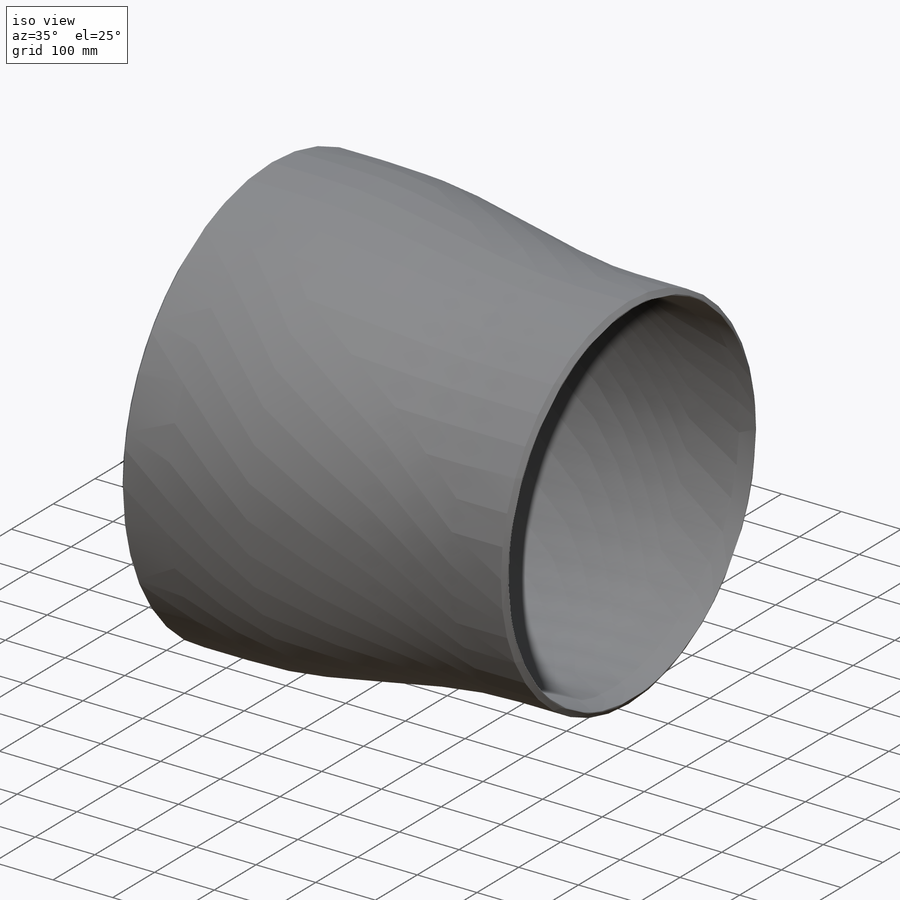
[diagram: iso view]
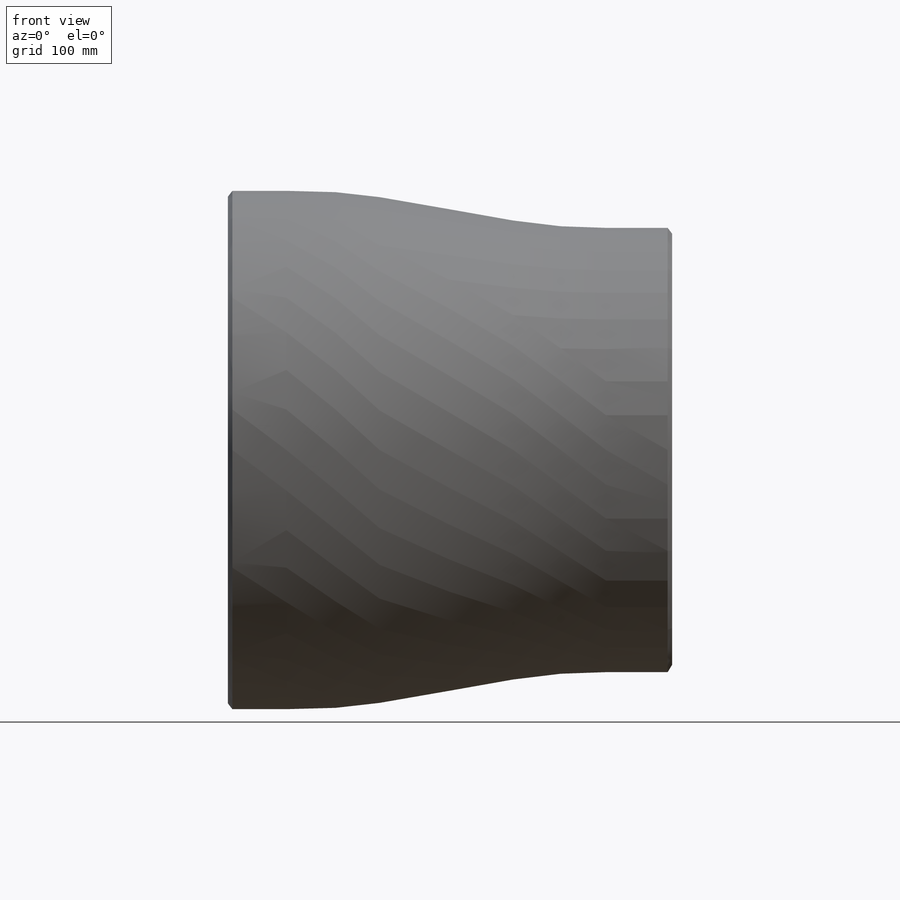
[diagram: front view]
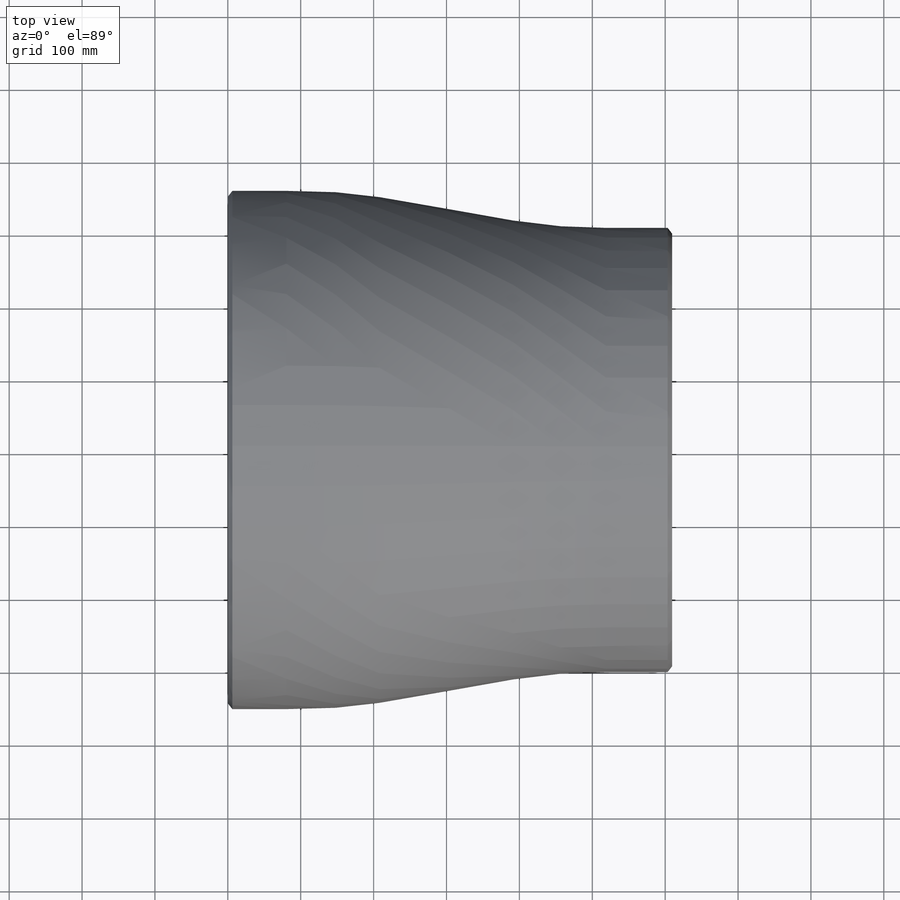
[diagram: top view]
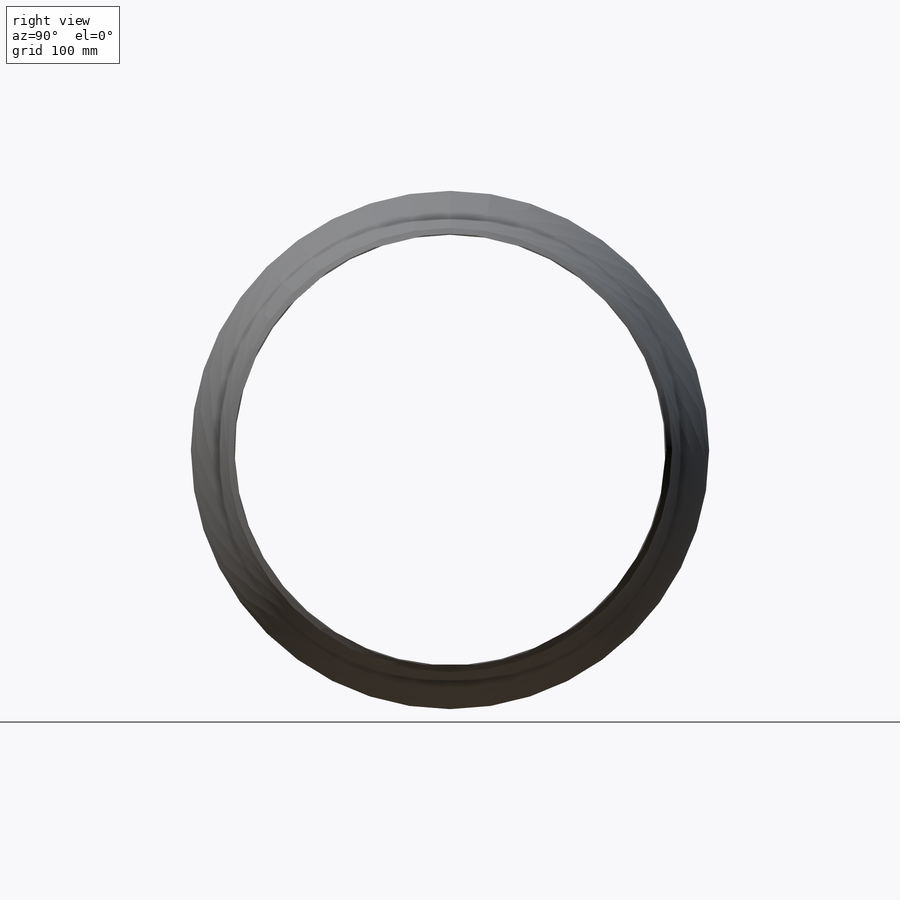
[diagram: right view]
SOLIDWORKS PART (.sldprt)
format: sldprt  version: not decoded by parser v0  size: 870,400 bytes
history: native  units: mm
features: sketch x4, shell x2, chamfer x2, material x1, sweep x1 + 1 further entry (+16 scaffold rows collapsed)
feature tree (27):
  scaffold x16  (default folders/planes/origin — collapsed)
  material  "Material <not specified>"
  "Design Table"
  sketch  "Sketch1"  dims[Pipe OD 2=33.401mm Pipe OD 1=60.325mm PIPE OD 1=60.325mm PIPE OD 2=33.401mm H=152.4mm]
  sketch  "Sketch2"  dims[c1.PIPE OD 1=219.075mm c1.PIPE OD 2=114.3mm c1.H half=38.1mm c1.H qtr=15.24mm c1.Tan Ext=25.4mm c1.D1=46.863mm c2.D1=166.6875mm c2.D2=76.2mm]
  sketch  "Sketch3"
  sweep  "Base-Sweep"
  shell  "Shell1"  Thickness=8.1788mm Wall Thickness=8.1788mm
  chamfer  "Chamfer1"  Distance=6.6548mm Angle=37.5deg Chamfer Depth=6.6548mm Chamfer Angle=37.5deg
  sketch  "Sketch4"  dims[Diameter=203.2mm StubLength=0.0mm]
  shell  "CPoint2"  [1 undecoded]
  chamfer  "Axis2"  Distance=101.6mm Diameter=101.6mm StubLength=0mm H qtr=15.24mm
decode coverage: 6 of 9 modeling features carry decoded parameters; 1 rows unclassified (native names shown)
note: 1 parameter value undecoded
note: suppression state not decoded; provenance and decode notes live in map.json
